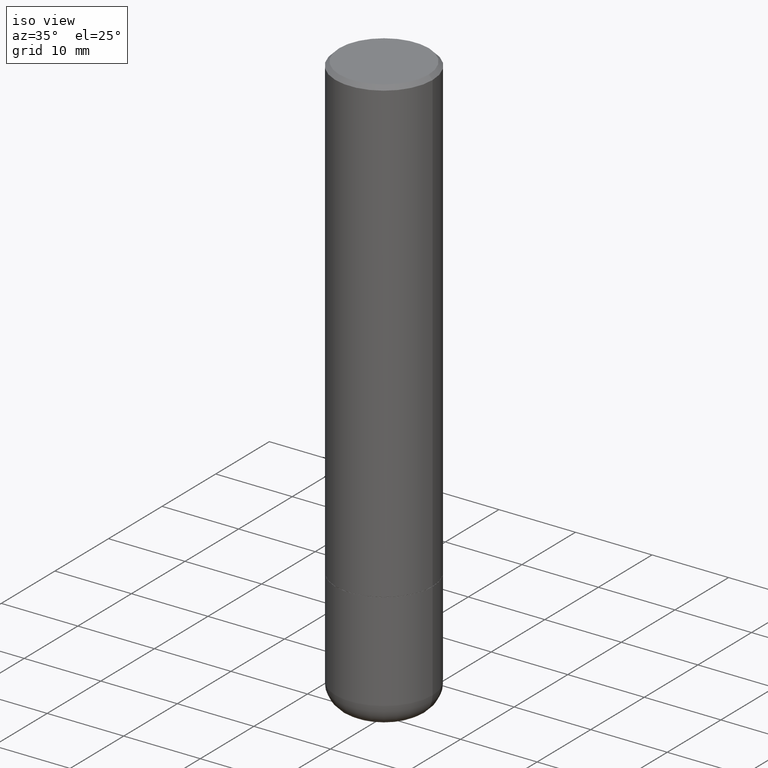
[diagram: clean part render]
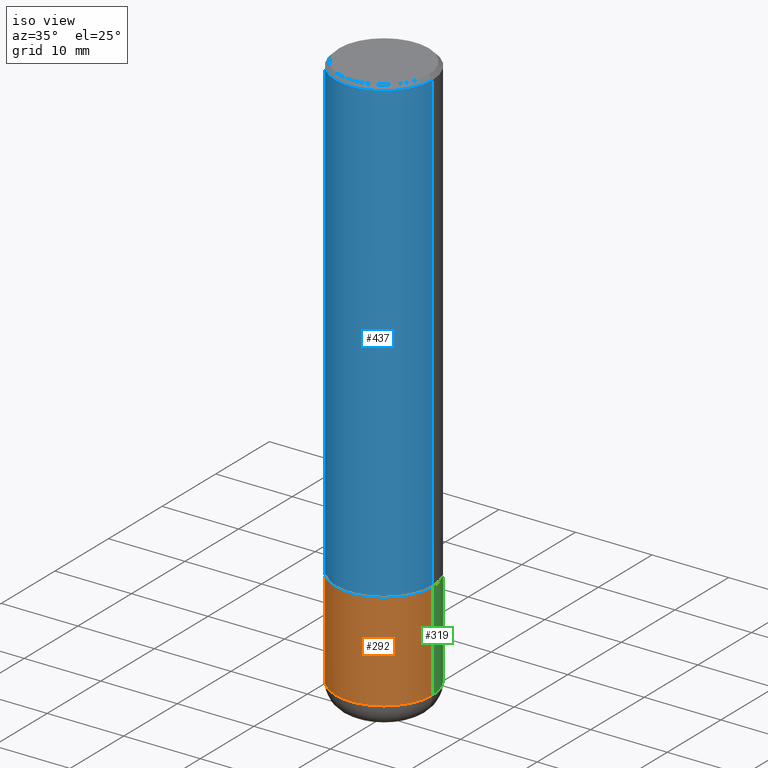
[diagram: same view with three faces highlighted in distinct colors, each labeled with its STEP entity id]
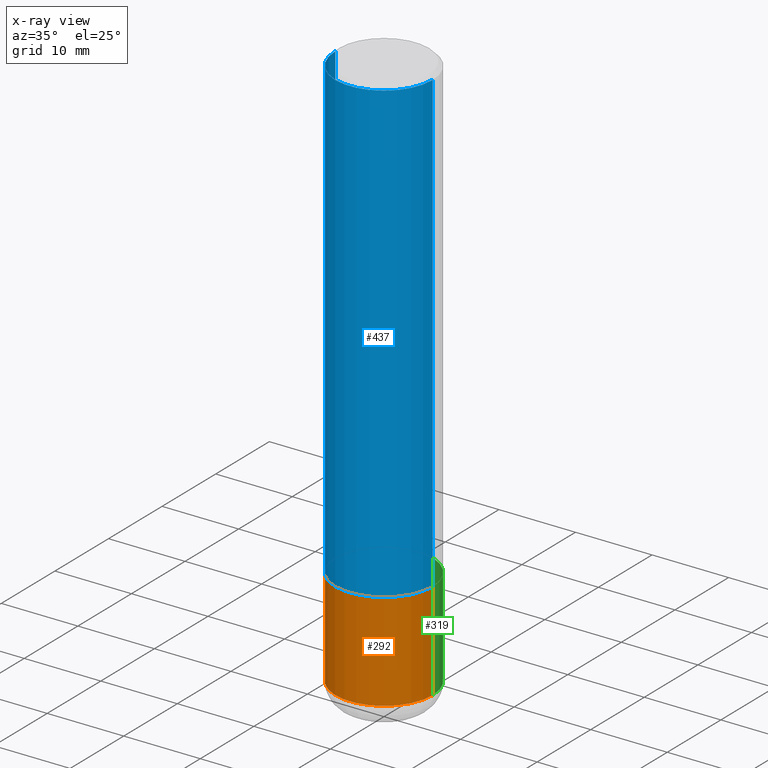
[diagram: x-ray of the same camera — body ghosted, the three highlighted faces saturated]
A machine part, iso view with three faces highlighted in distinct colors.
The next image is the same camera in x-ray (body ghosted, the three faces saturated) — at least one of them is partly hidden behind the body in this view.
Their STEP definitions:

[orange] entity #292 — the highlighted cylindrical surface (partial cylindrical patch) has radius 6.35 mm, axis along (-0, 0, 1).
#12 = EDGE_CURVE ( 'NONE', #194, #444, #91, .T. ) ;
#39 = ORIENTED_EDGE ( 'NONE', *, *, #41, .T. ) ;
#40 = DIRECTION ( 'NONE',  ( 1.000000000000000000, -6.982962677686269077E-15, 0.000000000000000000 ) ) ;
#41 = EDGE_CURVE ( 'NONE', #444, #409, #276, .T. ) ;
#44 = AXIS2_PLACEMENT_3D ( 'NONE', #453, #372, #337 ) ;
#75 = EDGE_LOOP ( 'NONE', ( #369, #232, #39, #457 ) ) ;
#81 = AXIS2_PLACEMENT_3D ( 'NONE', #329, #148, #402 ) ;
#91 = CIRCLE ( 'NONE', #231, 0.2500000000000000555 ) ;
#140 = VECTOR ( 'NONE', #211, 39.37007874015748143 ) ;
#146 = DIRECTION ( 'NONE',  ( -2.445468806185136597E-29, 3.491481338843145583E-15, 1.000000000000000000 ) ) ;
#148 = DIRECTION ( 'NONE',  ( -2.445468806185136597E-29, 3.491481338843145583E-15, 1.000000000000000000 ) ) ;
#153 = EDGE_CURVE ( 'NONE', #194, #341, #401, .T. ) ;
#161 = CARTESIAN_POINT ( 'NONE',  ( 0.2499999999999995837, -1.003800884917403364E-14, -2.375000000000000000 ) ) ;
#167 = DIRECTION ( 'NONE',  ( -2.445468806185136877E-29, 3.491481338843145188E-15, 1.000000000000000000 ) ) ;
#188 = CARTESIAN_POINT ( 'NONE',  ( 7.042961335728249090E-29, -1.005548220925756617E-14, -2.880004569232299527 ) ) ;
#194 = VERTEX_POINT ( 'NONE', #214 ) ;
#211 = DIRECTION ( 'NONE',  ( -2.445468806185136877E-29, 3.491481338843145188E-15, 1.000000000000000000 ) ) ;
#214 = CARTESIAN_POINT ( 'NONE',  ( -0.2500000000000000555, -7.397518355104768470E-15, -2.880004569232299527 ) ) ;
#217 = FACE_OUTER_BOUND ( 'NONE', #75, .T. ) ;
#231 = AXIS2_PLACEMENT_3D ( 'NONE', #188, #146, #40 ) ;
#232 = ORIENTED_EDGE ( 'NONE', *, *, #12, .T. ) ;
#236 = CARTESIAN_POINT ( 'NONE',  ( -0.2499999999999995837, -7.397518355104770047E-15, -2.375000000000000000 ) ) ;
#276 = LINE ( 'NONE', #353, #390 ) ;
#292 = ADVANCED_FACE ( 'NONE', ( #217 ), #365, .T. ) ;
#329 = CARTESIAN_POINT ( 'NONE',  ( 0.000000000000000000, 0.000000000000000000, 0.000000000000000000 ) ) ;
#337 = DIRECTION ( 'NONE',  ( 1.000000000000000000, -6.982962677686262766E-15, 0.000000000000000000 ) ) ;
#341 = VERTEX_POINT ( 'NONE', #236 ) ;
#353 = CARTESIAN_POINT ( 'NONE',  ( 0.2499999999999998057, -1.745740669421565297E-15, 1.219044193948982967E-29 ) ) ;
#365 = CYLINDRICAL_SURFACE ( 'NONE', #81, 0.2499999999999998057 ) ;
#369 = ORIENTED_EDGE ( 'NONE', *, *, #153, .F. ) ;
#372 = DIRECTION ( 'NONE',  ( -2.445468806185136597E-29, 3.491481338843145583E-15, 1.000000000000000000 ) ) ;
#390 = VECTOR ( 'NONE', #167, 39.37007874015748143 ) ;
#401 = LINE ( 'NONE', #436, #140 ) ;
#402 = DIRECTION ( 'NONE',  ( 1.000000000000000000, -6.982962677686266711E-15, 4.876176775795935793E-29 ) ) ;
#409 = VERTEX_POINT ( 'NONE', #161 ) ;
#416 = CARTESIAN_POINT ( 'NONE',  ( 0.2500000000000000555, -1.180122287867913443E-14, -2.880004569232299527 ) ) ;
#419 = EDGE_CURVE ( 'NONE', #341, #409, #455, .T. ) ;
#436 = CARTESIAN_POINT ( 'NONE',  ( -0.2499999999999998057, 1.776356839400249084E-15, -1.229733772563725465E-29 ) ) ;
#444 = VERTEX_POINT ( 'NONE', #416 ) ;
#453 = CARTESIAN_POINT ( 'NONE',  ( 5.807988414689700538E-29, -8.292268179752471696E-15, -2.375000000000000000 ) ) ;
#455 = CIRCLE ( 'NONE', #44, 0.2499999999999995837 ) ;
#457 = ORIENTED_EDGE ( 'NONE', *, *, #419, .F. ) ;

[blue] entity #437 — the highlighted cylindrical surface (partial cylindrical patch) has radius 6.35 mm, axis along (-0, 0, 1).
#4 = CYLINDRICAL_SURFACE ( 'NONE', #473, 0.2499999999999994449 ) ;
#6 = VECTOR ( 'NONE', #15, 39.37007874015748143 ) ;
#15 = DIRECTION ( 'NONE',  ( -2.445468806185136877E-29, 3.491481338843145188E-15, 1.000000000000000000 ) ) ;
#32 = VERTEX_POINT ( 'NONE', #308 ) ;
#37 = DIRECTION ( 'NONE',  ( -2.445468806185136877E-29, 3.491481338843145188E-15, 1.000000000000000000 ) ) ;
#54 = DIRECTION ( 'NONE',  ( 1.000000000000000000, -6.982962677686270655E-15, 0.000000000000000000 ) ) ;
#57 = VERTEX_POINT ( 'NONE', #90 ) ;
#66 = CARTESIAN_POINT ( 'NONE',  ( 0.2499999999999993061, -1.784954126219741456E-15, -0.02000000000000011838 ) ) ;
#72 = AXIS2_PLACEMENT_3D ( 'NONE', #139, #107, #481 ) ;
#87 = CARTESIAN_POINT ( 'NONE',  ( -0.2499999999999994449, 1.776356839400246520E-15, -1.229733772563723783E-29 ) ) ;
#90 = CARTESIAN_POINT ( 'NONE',  ( -0.2499999999999995559, -2.402946323194996317E-15, -2.374000000000000110 ) ) ;
#92 = EDGE_CURVE ( 'NONE', #57, #32, #202, .T. ) ;
#96 = EDGE_CURVE ( 'NONE', #57, #259, #128, .T. ) ;
#107 = DIRECTION ( 'NONE',  ( -2.445468806185136597E-29, 3.491481338843145583E-15, 1.000000000000000000 ) ) ;
#120 = EDGE_LOOP ( 'NONE', ( #492, #336, #462, #246 ) ) ;
#121 = DIRECTION ( 'NONE',  ( 1.000000000000000000, -6.982962677686266711E-15, 4.876176775795935232E-29 ) ) ;
#128 = LINE ( 'NONE', #87, #424 ) ;
#139 = CARTESIAN_POINT ( 'NONE',  ( 4.890937612370302936E-31, -6.982962677686332285E-17, -0.02000000000000011838 ) ) ;
#147 = DIRECTION ( 'NONE',  ( -2.445468806185136597E-29, 3.491481338843145583E-15, 1.000000000000000000 ) ) ;
#157 = CARTESIAN_POINT ( 'NONE',  ( 0.000000000000000000, 0.000000000000000000, 0.000000000000000000 ) ) ;
#160 = VERTEX_POINT ( 'NONE', #66 ) ;
#166 = LINE ( 'NONE', #476, #6 ) ;
#202 = CIRCLE ( 'NONE', #328, 0.2499999999999995837 ) ;
#226 = FACE_OUTER_BOUND ( 'NONE', #120, .T. ) ;
#230 = CARTESIAN_POINT ( 'NONE',  ( 5.805542945883514935E-29, -8.288776698413628688E-15, -2.374000000000000110 ) ) ;
#246 = ORIENTED_EDGE ( 'NONE', *, *, #271, .F. ) ;
#259 = VERTEX_POINT ( 'NONE', #286 ) ;
#271 = EDGE_CURVE ( 'NONE', #259, #160, #475, .T. ) ;
#286 = CARTESIAN_POINT ( 'NONE',  ( -0.2499999999999993061, 1.675911042644698449E-15, -0.02000000000000011838 ) ) ;
#303 = DIRECTION ( 'NONE',  ( -2.445468806185136597E-29, 3.491481338843145583E-15, 1.000000000000000000 ) ) ;
#308 = CARTESIAN_POINT ( 'NONE',  ( 0.2499999999999995837, -1.003451736783519379E-14, -2.374000000000000110 ) ) ;
#328 = AXIS2_PLACEMENT_3D ( 'NONE', #230, #147, #54 ) ;
#336 = ORIENTED_EDGE ( 'NONE', *, *, #92, .T. ) ;
#424 = VECTOR ( 'NONE', #37, 39.37007874015748143 ) ;
#437 = ADVANCED_FACE ( 'NONE', ( #226 ), #4, .T. ) ;
#462 = ORIENTED_EDGE ( 'NONE', *, *, #463, .T. ) ;
#463 = EDGE_CURVE ( 'NONE', #32, #160, #166, .T. ) ;
#473 = AXIS2_PLACEMENT_3D ( 'NONE', #157, #303, #121 ) ;
#475 = CIRCLE ( 'NONE', #72, 0.2499999999999993061 ) ;
#476 = CARTESIAN_POINT ( 'NONE',  ( 0.2499999999999994449, -1.745740669421562733E-15, 1.219044193948981146E-29 ) ) ;
#481 = DIRECTION ( 'NONE',  ( 1.000000000000000000, -6.982962677686267499E-15, 0.000000000000000000 ) ) ;
#492 = ORIENTED_EDGE ( 'NONE', *, *, #96, .F. ) ;

[green] entity #319 — the highlighted cylindrical surface (partial cylindrical patch) has radius 6.35 mm, axis along (-0, 0, 1).
#19 = AXIS2_PLACEMENT_3D ( 'NONE', #111, #159, #421 ) ;
#33 = CIRCLE ( 'NONE', #367, 0.2500000000000000555 ) ;
#41 = EDGE_CURVE ( 'NONE', #444, #409, #276, .T. ) ;
#68 = ORIENTED_EDGE ( 'NONE', *, *, #41, .F. ) ;
#74 = EDGE_LOOP ( 'NONE', ( #301, #79, #116, #68 ) ) ;
#79 = ORIENTED_EDGE ( 'NONE', *, *, #153, .T. ) ;
#84 = FACE_OUTER_BOUND ( 'NONE', #74, .T. ) ;
#97 = DIRECTION ( 'NONE',  ( 1.000000000000000000, -6.982962677686269077E-15, 0.000000000000000000 ) ) ;
#111 = CARTESIAN_POINT ( 'NONE',  ( 0.000000000000000000, 0.000000000000000000, 0.000000000000000000 ) ) ;
#116 = ORIENTED_EDGE ( 'NONE', *, *, #350, .F. ) ;
#140 = VECTOR ( 'NONE', #211, 39.37007874015748143 ) ;
#153 = EDGE_CURVE ( 'NONE', #194, #341, #401, .T. ) ;
#159 = DIRECTION ( 'NONE',  ( -2.445468806185136597E-29, 3.491481338843145583E-15, 1.000000000000000000 ) ) ;
#161 = CARTESIAN_POINT ( 'NONE',  ( 0.2499999999999995837, -1.003800884917403364E-14, -2.375000000000000000 ) ) ;
#167 = DIRECTION ( 'NONE',  ( -2.445468806185136877E-29, 3.491481338843145188E-15, 1.000000000000000000 ) ) ;
#186 = CIRCLE ( 'NONE', #287, 0.2499999999999995837 ) ;
#194 = VERTEX_POINT ( 'NONE', #214 ) ;
#211 = DIRECTION ( 'NONE',  ( -2.445468806185136877E-29, 3.491481338843145188E-15, 1.000000000000000000 ) ) ;
#214 = CARTESIAN_POINT ( 'NONE',  ( -0.2500000000000000555, -7.397518355104768470E-15, -2.880004569232299527 ) ) ;
#236 = CARTESIAN_POINT ( 'NONE',  ( -0.2499999999999995837, -7.397518355104770047E-15, -2.375000000000000000 ) ) ;
#242 = EDGE_CURVE ( 'NONE', #444, #194, #33, .T. ) ;
#276 = LINE ( 'NONE', #353, #390 ) ;
#287 = AXIS2_PLACEMENT_3D ( 'NONE', #451, #380, #459 ) ;
#301 = ORIENTED_EDGE ( 'NONE', *, *, #242, .T. ) ;
#319 = ADVANCED_FACE ( 'NONE', ( #84 ), #413, .T. ) ;
#327 = CARTESIAN_POINT ( 'NONE',  ( 7.042961335728249090E-29, -1.005548220925756617E-14, -2.880004569232299527 ) ) ;
#341 = VERTEX_POINT ( 'NONE', #236 ) ;
#350 = EDGE_CURVE ( 'NONE', #409, #341, #186, .T. ) ;
#353 = CARTESIAN_POINT ( 'NONE',  ( 0.2499999999999998057, -1.745740669421565297E-15, 1.219044193948982967E-29 ) ) ;
#367 = AXIS2_PLACEMENT_3D ( 'NONE', #327, #432, #97 ) ;
#380 = DIRECTION ( 'NONE',  ( -2.445468806185136597E-29, 3.491481338843145583E-15, 1.000000000000000000 ) ) ;
#390 = VECTOR ( 'NONE', #167, 39.37007874015748143 ) ;
#401 = LINE ( 'NONE', #436, #140 ) ;
#409 = VERTEX_POINT ( 'NONE', #161 ) ;
#413 = CYLINDRICAL_SURFACE ( 'NONE', #19, 0.2499999999999998057 ) ;
#416 = CARTESIAN_POINT ( 'NONE',  ( 0.2500000000000000555, -1.180122287867913443E-14, -2.880004569232299527 ) ) ;
#421 = DIRECTION ( 'NONE',  ( 1.000000000000000000, -6.982962677686266711E-15, 4.876176775795935793E-29 ) ) ;
#432 = DIRECTION ( 'NONE',  ( -2.445468806185136597E-29, 3.491481338843145583E-15, 1.000000000000000000 ) ) ;
#436 = CARTESIAN_POINT ( 'NONE',  ( -0.2499999999999998057, 1.776356839400249084E-15, -1.229733772563725465E-29 ) ) ;
#444 = VERTEX_POINT ( 'NONE', #416 ) ;
#451 = CARTESIAN_POINT ( 'NONE',  ( 5.807988414689700538E-29, -8.292268179752471696E-15, -2.375000000000000000 ) ) ;
#459 = DIRECTION ( 'NONE',  ( 1.000000000000000000, -6.982962677686262766E-15, 0.000000000000000000 ) ) ;